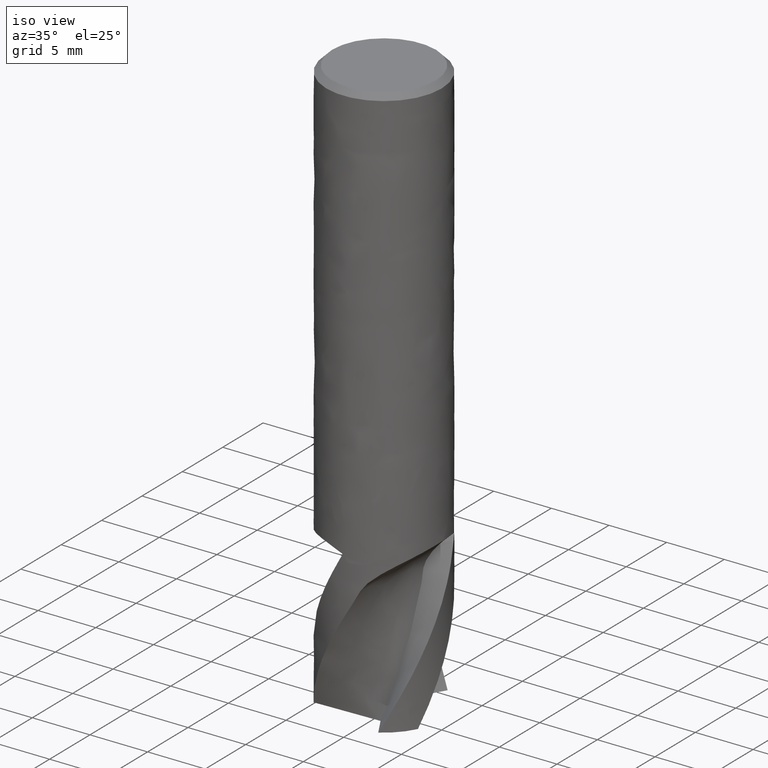
[diagram: clean part render]
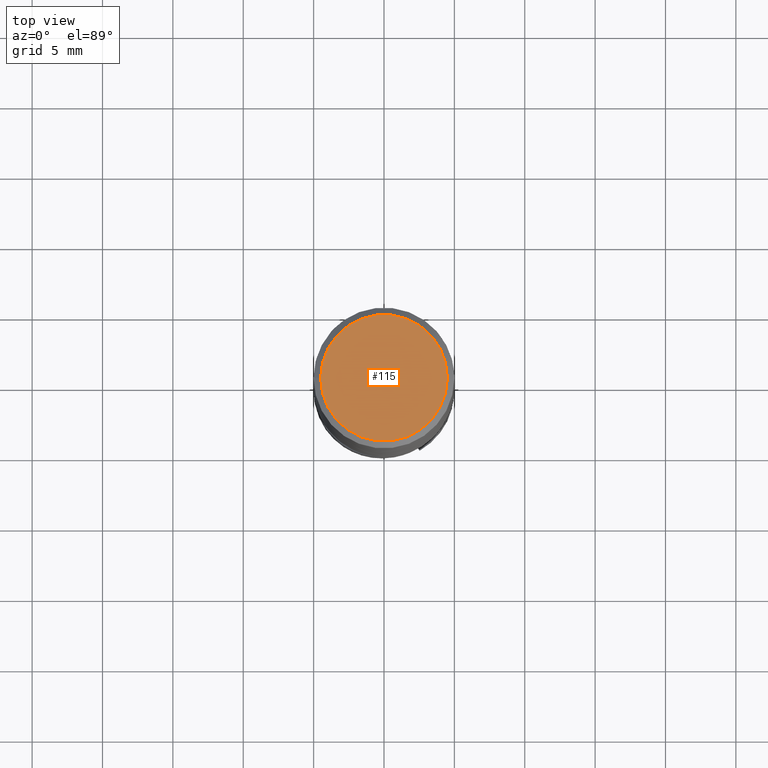
[diagram: tour spotlight — one face highlighted and labeled with its STEP entity id]
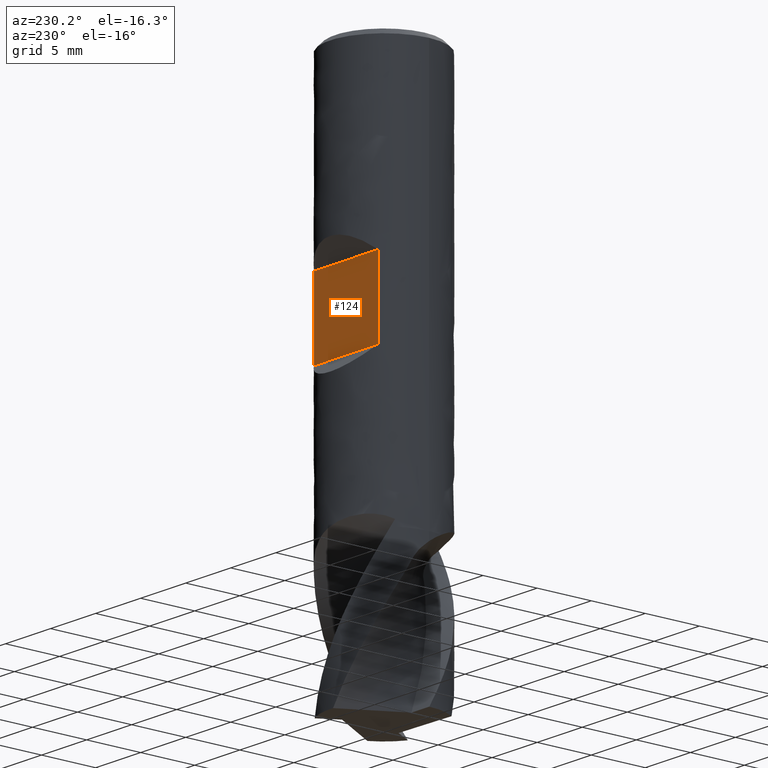
[diagram: tour spotlight — one face highlighted and labeled with its STEP entity id]
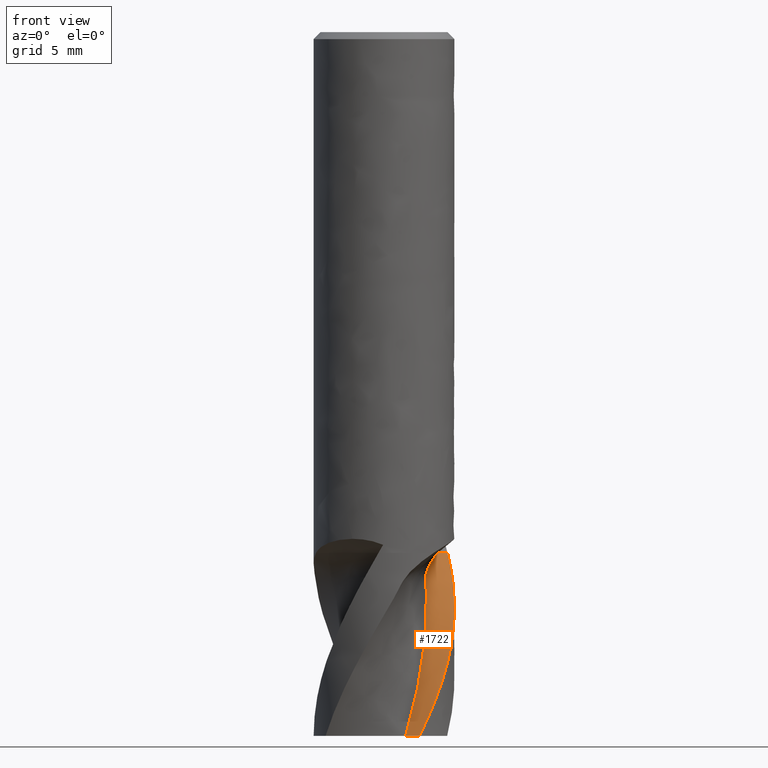
[diagram: tour spotlight — one face highlighted and labeled with its STEP entity id]
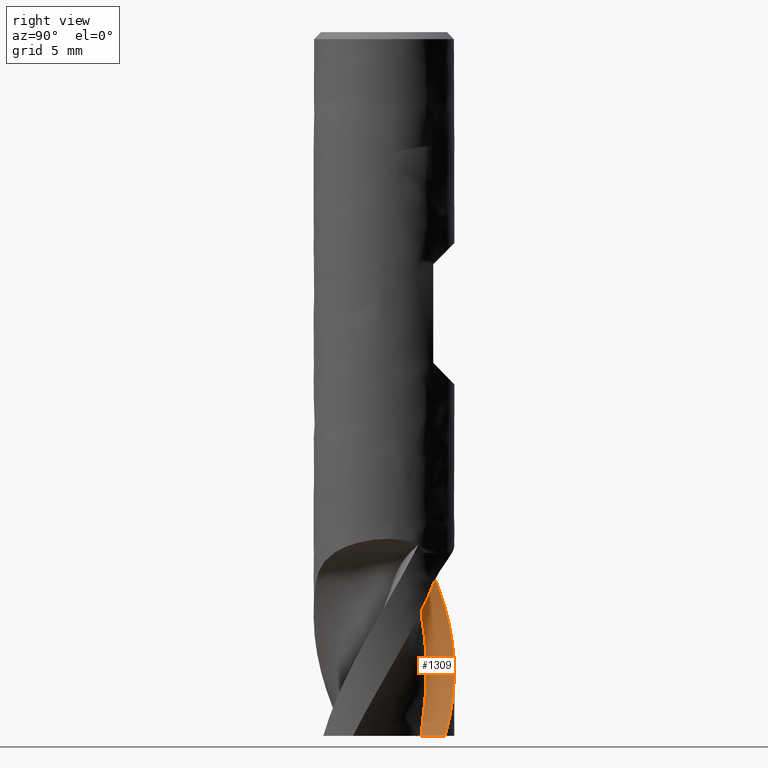
[diagram: tour spotlight — one face highlighted and labeled with its STEP entity id]
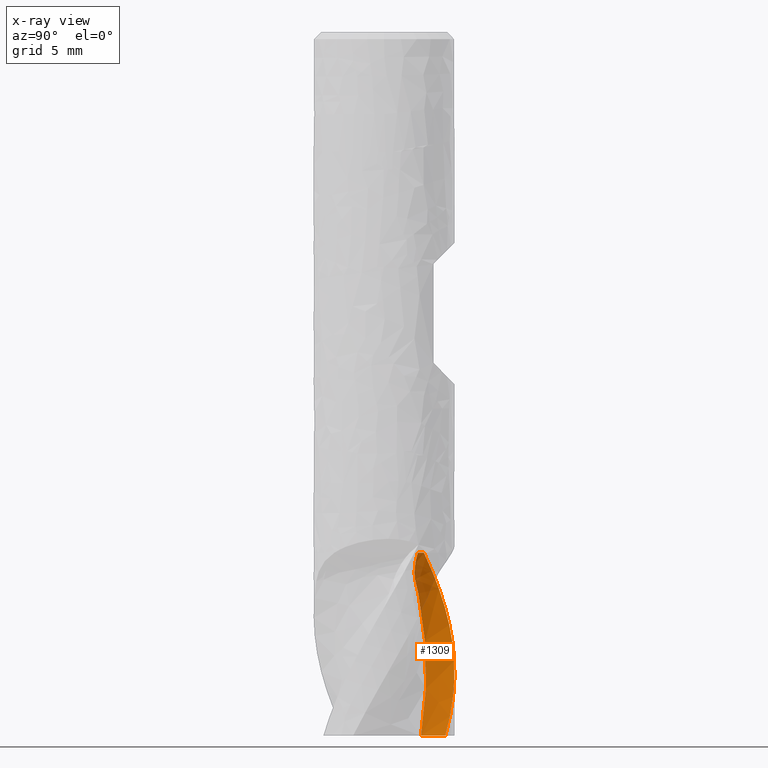
[diagram: x-ray of the same camera — body ghosted, this tour face saturated]
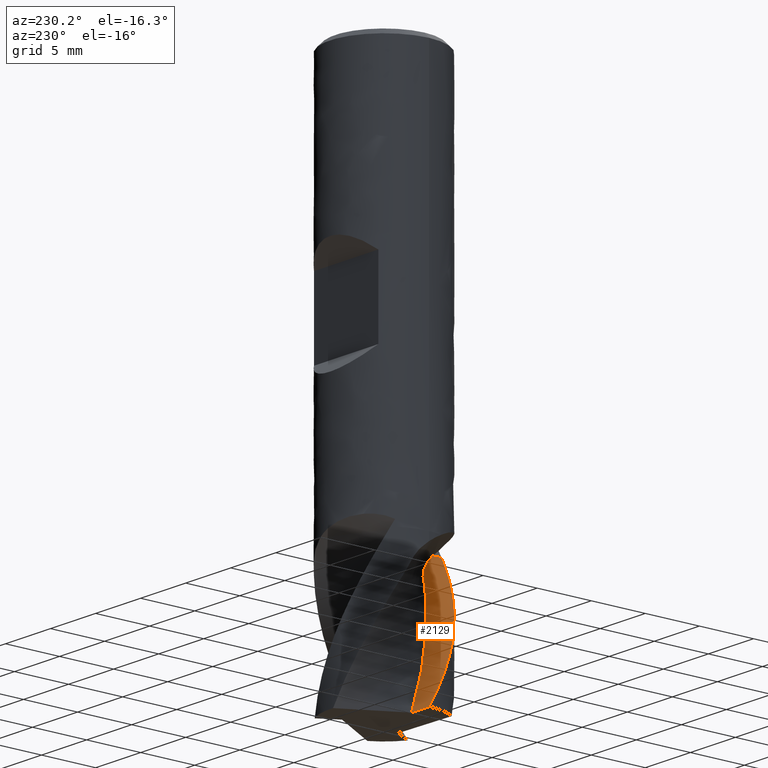
[diagram: tour spotlight — one face highlighted and labeled with its STEP entity id]
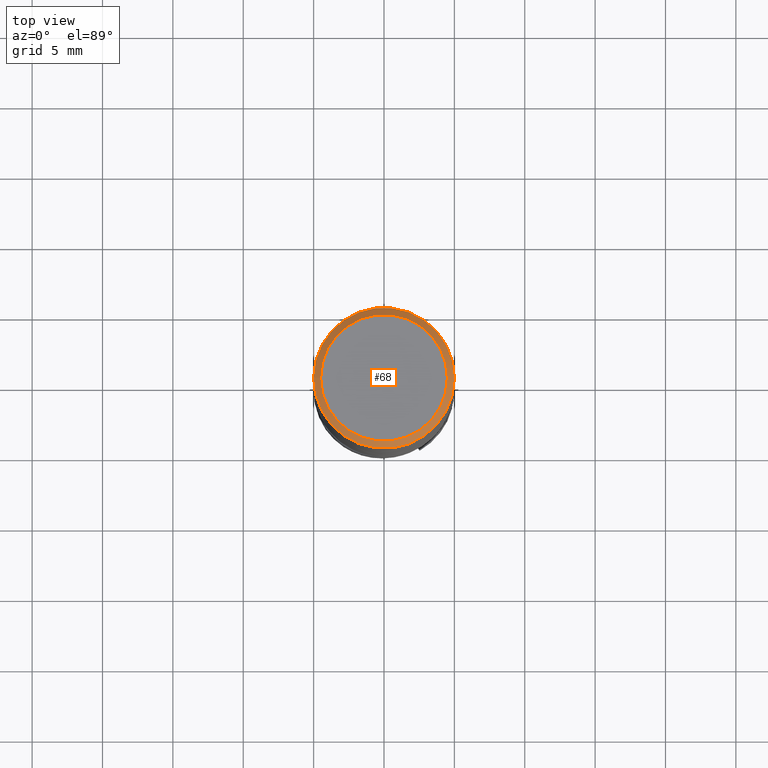
[diagram: tour spotlight — one face highlighted and labeled with its STEP entity id]
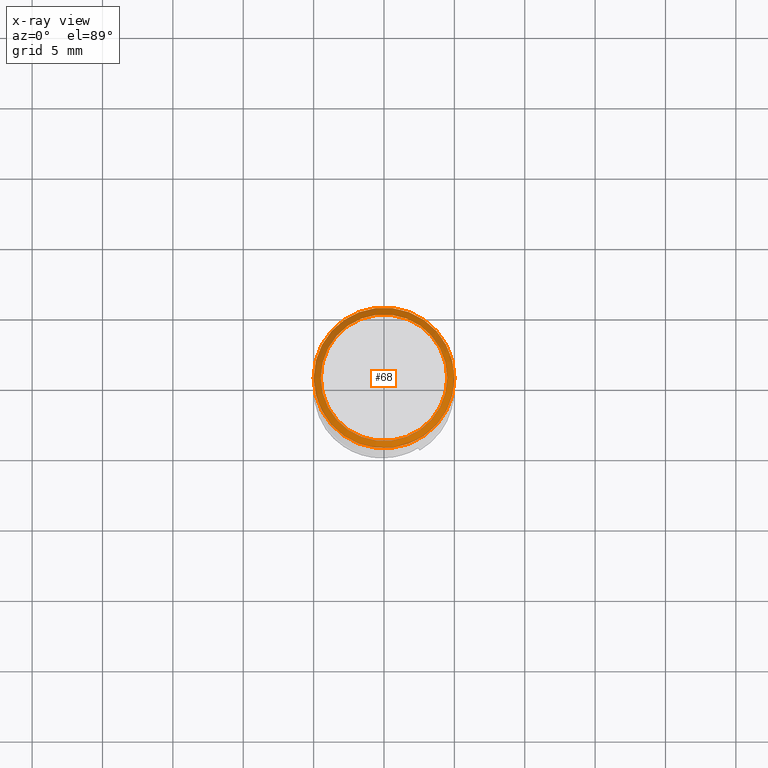
[diagram: x-ray of the same camera — body ghosted, this tour face saturated]
A machine part: a face-by-face anatomy tour. The part has 25 B-rep faces; the first image is the clean iso view, then the 6 largest visible faces are spotlighted one at a time (largest first), each with its STEP entity span.

Face 1 — top view, entity #115. In plain terms, the highlighted planar face has unit normal (0, -0, 1).
Definition (entity closure, byte-faithful):
#75 = VERTEX_POINT('', #76);
#76 = CARTESIAN_POINT('', (-4.5, 2.75545529808154E-16, 0.));
#82 = EDGE_CURVE('', #75, #75, #83, .T.);
#83 = CIRCLE('', #84, 4.5);
#84 = AXIS2_PLACEMENT_3D('', #85, #86, #87);
#85 = CARTESIAN_POINT('', (0., 0., 0.));
#86 = DIRECTION('', (3.74939945665464E-33, 6.12323399573677E-17, -1.));
#87 = DIRECTION('', (-1., 6.12323399573677E-17, 0.));
#115 = ADVANCED_FACE('', (#116), #119, .T.);
#116 = FACE_OUTER_BOUND('', #117, .T.);
#117 = EDGE_LOOP('', (#118));
#118 = ORIENTED_EDGE('', *, *, #82, .F.);
#119 = PLANE('', #120);
#120 = AXIS2_PLACEMENT_3D('', #121, #122, #123);
#121 = CARTESIAN_POINT('', (7.00035713374682, -7.00035713374682, -5.95537370240346E-15));
#122 = DIRECTION('', (0., -8.50724268579701E-16, 1.));
#123 = DIRECTION('', (0., 1., 8.50724268579701E-16));

Face 2 — auxiliary view, entity #124. In plain terms, the highlighted planar face has unit normal (0, 1, 0).
Definition (entity closure, byte-faithful):
#124 = ADVANCED_FACE('', (#125), #159, .T.);
#125 = FACE_OUTER_BOUND('', #126, .T.);
#126 = EDGE_LOOP('', (#127, #137, #145, #153));
#127 = ORIENTED_EDGE('', *, *, #128, .T.);
#128 = EDGE_CURVE('', #129, #131, #133, .T.);
#129 = VERTEX_POINT('', #130);
#130 = CARTESIAN_POINT('', (3.57071421427142, 3.5, -16.5));
#131 = VERTEX_POINT('', #132);
#132 = CARTESIAN_POINT('', (3.57071421427142, 3.5, -23.5));
#133 = LINE('', #134, #135);
#134 = CARTESIAN_POINT('', (3.57071421427142, 3.5, -16.5));
#135 = VECTOR('', #136, 7.);
#136 = DIRECTION('', (0., 4.44089209850063E-16, -7.));
#137 = ORIENTED_EDGE('', *, *, #138, .T.);
#138 = EDGE_CURVE('', #131, #139, #141, .T.);
#139 = VERTEX_POINT('', #140);
#140 = CARTESIAN_POINT('', (-3.57071421427142, 3.5, -23.5));
#141 = LINE('', #142, #143);
#142 = CARTESIAN_POINT('', (3.57071421427142, 3.5, -23.5));
#143 = VECTOR('', #144, 7.14142842854284);
#144 = DIRECTION('', (-7.14142842854284, 4.44089209850063E-16, 0.));
#145 = ORIENTED_EDGE('', *, *, #146, .F.);
#146 = EDGE_CURVE('', #147, #139, #149, .T.);
#147 = VERTEX_POINT('', #148);
#148 = CARTESIAN_POINT('', (-3.57071421427142, 3.5, -16.5));
#149 = LINE('', #150, #151);
#150 = CARTESIAN_POINT('', (-3.57071421427142, 3.5, -16.5));
#151 = VECTOR('', #152, 7.);
#152 = DIRECTION('', (-8.88178419700125E-16, 0., -7.));
#153 = ORIENTED_EDGE('', *, *, #154, .F.);
#154 = EDGE_CURVE('', #129, #147, #155, .T.);
#155 = LINE('', #156, #157);
#156 = CARTESIAN_POINT('', (3.57071421427142, 3.5, -16.5));
#157 = VECTOR('', #158, 7.14142842854284);
#158 = DIRECTION('', (-7.14142842854284, 4.44089209850063E-16, 0.));
#159 = PLANE('', #160);
#160 = AXIS2_PLACEMENT_3D('', #161, #162, #163);
#161 = CARTESIAN_POINT('', (5., 3.5, -23.5));
#162 = DIRECTION('', (0., 1., 6.34413156928661E-17));
#163 = DIRECTION('', (-1., 0., 0.));

Face 3 — front view, entity #1722. In plain terms, the highlighted face is a freeform B-spline surface patch.
Definition (entity closure, byte-faithful):
#988 = VERTEX_POINT('', #989);
#989 = CARTESIAN_POINT('', (3.82045431044937, 1.82084653301444, -37.));
#995 = EDGE_CURVE('', #988, #996, #998, .T.);
#996 = VERTEX_POINT('', #997);
#997 = CARTESIAN_POINT('', (4.51357657803262, 2.15119187294748, -37.));
#998 = LINE('', #999, #1000);
#999 = CARTESIAN_POINT('', (3.82045431044936, 1.82084653301443, -37.));
#1000 = VECTOR('', #1001, 0.767819328641348);
#1001 = DIRECTION('', (0.693122267583265, 0.330345339933052, 0.));
#1573 = EDGE_CURVE('', #996, #1574, #1576, .T.);
#1574 = VERTEX_POINT('', #1575);
#1575 = CARTESIAN_POINT('', (2.52471228494179, -4.31576503974255, -50.));
#1576 = B_SPLINE_CURVE_WITH_KNOTS('', 3, (#1577, #1578, #1579, #1580, #1581, #1582, #1583, #1584, #1585, #1586, #1587, #1588, #1589, #1590, #1591, #1592, #1593, #1594, #1595, #1596, #1597, #1598, #1599, #1600, #1601, #1602, #1603, #1604, #1605, #1606, #1607, #1608, #1609, #1610, #1611, #1612, #1613, #1614, #1615, #1616, #1617, #1618, #1619, #1620, #1621, #1622, #1623, #1624, #1625, #1626, #1627, #1628, #1629, #1630, #1631, #1632, #1633, #1634, #1635, #1636, #1637, #1638, #1639, #1640, #1641, #1642, #1643, #1644, #1645, #1646, #1647, #1648, #1649, #1650, #1651, #1652, #1653, #1654, #1655, #1656, #1657, #1658, #1659, #1660, #1661, #1662, #1663, #1664, #1665, #1666, #1667, #1668, #1669, #1670, #1671, #1672, #1673, #1674, #1675, #1676, #1677, #1678, #1679, #1680, #1681, #1682, #1683, #1684, #1685, #1686, #1687, #1688, #1689, #1690, #1691, #1692, #1693, #1694), .UNSPECIFIED., .F., .U., (4, 3, 3, 3, 3, 3, 3, 3, 3, 3, 3, 3, 3, 3, 3, 3, 3, 3, 3, 3, 3, 3, 3, 3, 3, 3, 3, 3, 3, 3, 3, 3, 3, 3, 3, 3, 3, 3, 3, 4), (0.660101457707535, 0.788015446717256, 0.985019040931394, 1.18202238377968, 1.37902460556503, 1.57602425974893, 1.77302135436621, 2.06858821376276, 2.26566389090764, 2.46277342951328, 2.65991293752496, 2.74750546111594, 2.94460382971803, 3.14154836010868, 3.33840799857541, 3.53525252840326, 3.73214857226571, 3.81971554835767, 4.11524449749473, 4.41080138553026, 4.70629177718464, 4.90324373998797, 5.10015229603674, 5.18771418202401, 5.63140652950315, 5.92717037484076, 6.12432575781879, 6.56818160772682, 7.01196124286788, 7.45565909294126, 8.12140928759308, 8.78710812321912, 9.45269334664795, 10.4511961006731, 11.4493962791665, 12.447287211838, 13.4448771830679, 14.4421672631738, 15.4391582437301, 15.6334436813352), .UNSPECIFIED.);
#1577 = CARTESIAN_POINT('', (4.51357657803262, 2.15119187294748, -37.));
#1578 = CARTESIAN_POINT('', (4.52269019052406, 2.13206992087992, -37.0370039423316));
#1579 = CARTESIAN_POINT('', (4.53168247840204, 2.1128896324546, -37.0740082613894));
#1580 = CARTESIAN_POINT('', (4.54055210160929, 2.09365389034852, -37.111012514407));
#1581 = CARTESIAN_POINT('', (4.55421243434287, 2.06402843373027, -37.16800370749));
#1582 = CARTESIAN_POINT('', (4.56758224969655, 2.03427042842638, -37.224996526924));
#1583 = CARTESIAN_POINT('', (4.58065716627806, 2.00439016287385, -37.2819920069742));
#1584 = CARTESIAN_POINT('', (4.59373206617668, 1.97450993544692, -37.3389874143012));
#1585 = CARTESIAN_POINT('', (4.60651238108974, 1.94450670986796, -37.3959868105145));
#1586 = CARTESIAN_POINT('', (4.61899364227849, 1.91439226194396, -37.4529920348381));
#1587 = CARTESIAN_POINT('', (4.63147483244164, 1.88427798538858, -37.5099969347691));
#1588 = CARTESIAN_POINT('', (4.64365726800277, 1.85405174191559, -37.5670089894672));
#1589 = CARTESIAN_POINT('', (4.65553635275436, 1.82372730093692, -37.624031125531));
#1590 = CARTESIAN_POINT('', (4.66741528268152, 1.79340325518769, -37.6810525184046));
#1591 = CARTESIAN_POINT('', (4.67899114680903, 1.76298026432403, -37.7380853198429));
#1592 = CARTESIAN_POINT('', (4.69025923584381, 1.7324746175866, -37.7951338225287));
#1593 = CARTESIAN_POINT('', (4.70152717847515, 1.70196936720132, -37.8521815839978));
#1594 = CARTESIAN_POINT('', (4.71248586953033, 1.6713858527071, -37.9092494601207));
#1595 = CARTESIAN_POINT('', (4.72313787907759, 1.64072196767838, -37.9663304969753));
#1596 = CARTESIAN_POINT('', (4.73911974426328, 1.59471505467065, -38.0519726879274));
#1597 = CARTESIAN_POINT('', (4.75441577387398, 1.54851657799328, -38.1376429117305));
#1598 = CARTESIAN_POINT('', (4.76904964221312, 1.50205376405337, -38.2232799232886));
#1599 = CARTESIAN_POINT('', (4.778807094446, 1.47107366520887, -38.2803802764065));
#1600 = CARTESIAN_POINT('', (4.78827034108927, 1.43997474325795, -38.3374673527001));
#1601 = CARTESIAN_POINT('', (4.79744387580808, 1.40873427532361, -38.394522625451));
#1602 = CARTESIAN_POINT('', (4.8066189867198, 1.37748843966509, -38.4515877014152));
#1603 = CARTESIAN_POINT('', (4.81550454614975, 1.3461000683908, -38.5086222650346));
#1604 = CARTESIAN_POINT('', (4.82410224789088, 1.31454840226372, -38.5656089274251));
#1605 = CARTESIAN_POINT('', (4.83270125686462, 1.28299193888178, -38.6226042543199));
#1606 = CARTESIAN_POINT('', (4.84101255765101, 1.25127113822319, -38.6795530512326));
#1607 = CARTESIAN_POINT('', (4.84903465735026, 1.21936987490099, -38.7364404482481));
#1608 = CARTESIAN_POINT('', (4.85259901623622, 1.20519558691421, -38.7617165114552));
#1609 = CARTESIAN_POINT('', (4.85610627380285, 1.1909856105809, -38.7869807087667));
#1610 = CARTESIAN_POINT('', (4.85955608305265, 1.17673900065646, -38.81223199363));
#1611 = CARTESIAN_POINT('', (4.86731875213956, 1.14468165764246, -38.8690517637158));
#1612 = CARTESIAN_POINT('', (4.87478778972705, 1.11244567888946, -38.9258117438629));
#1613 = CARTESIAN_POINT('', (4.88192483914902, 1.08018973560194, -38.9826011371794));
#1614 = CARTESIAN_POINT('', (4.88905631799764, 1.04795896855845, -39.0393462055287));
#1615 = CARTESIAN_POINT('', (4.89585689011766, 1.01570773139388, -39.0961223599831));
#1616 = CARTESIAN_POINT('', (4.90231199648596, 0.983532962899463, -39.1529800682631));
#1617 = CARTESIAN_POINT('', (4.90876432041396, 0.951372063173041, -39.2098132683213));
#1618 = CARTESIAN_POINT('', (4.91487207410147, 0.919286874262206, -39.2667296300289));
#1619 = CARTESIAN_POINT('', (4.92063852051666, 0.887308599308967, -39.3237393363156));
#1620 = CARTESIAN_POINT('', (4.926404524367, 0.855332778633362, -39.3807446672053));
#1621 = CARTESIAN_POINT('', (4.93182988379401, 0.823463001094806, -39.4378449401624));
#1622 = CARTESIAN_POINT('', (4.93692935846076, 0.791661865677616, -39.4950112834286));
#1623 = CARTESIAN_POINT('', (4.94203016765541, 0.759852407932186, -39.5521925870749));
#1624 = CARTESIAN_POINT('', (4.94680551263605, 0.728110696036531, -39.6094413942207));
#1625 = CARTESIAN_POINT('', (4.95127498931909, 0.696330367098295, -39.6666916851714));
#1626 = CARTESIAN_POINT('', (4.95326273142995, 0.682196475681596, -39.6921530137009));
#1627 = CARTESIAN_POINT('', (4.95519001294439, 0.668053940389463, -39.7176143412419));
#1628 = CARTESIAN_POINT('', (4.95705849668959, 0.653889180517228, -39.7430675454021));
#1629 = CARTESIAN_POINT('', (4.96336442459008, 0.606084668055544, -39.8289693204016));
#1630 = CARTESIAN_POINT('', (4.96900307088977, 0.558008114060345, -39.9147720077417));
#1631 = CARTESIAN_POINT('', (4.97395945829877, 0.50963448391976, -40.0004433402708));
#1632 = CARTESIAN_POINT('', (4.9789163142778, 0.461256280603028, -40.0861227720494));
#1633 = CARTESIAN_POINT('', (4.98319011756973, 0.412578383255385, -40.1716757797653));
#1634 = CARTESIAN_POINT('', (4.98675681460506, 0.363670829171006, -40.2571235172016));
#1635 = CARTESIAN_POINT('', (4.99032270918086, 0.314774278637853, -40.3425520300299));
#1636 = CARTESIAN_POINT('', (4.99318109981958, 0.265645357045767, -40.4278801306741));
#1637 = CARTESIAN_POINT('', (4.99531284128629, 0.216447725052183, -40.5131835171647));
#1638 = CARTESIAN_POINT('', (4.9967337019231, 0.183656235176107, -40.5700404231001));
#1639 = CARTESIAN_POINT('', (4.9978319113918, 0.150835115641241, -40.6268892306513));
#1640 = CARTESIAN_POINT('', (4.99860607545858, 0.118056352597274, -40.6837659549689));
#1641 = CARTESIAN_POINT('', (4.99938006890533, 0.085284813750021, -40.7406301440774));
#1642 = CARTESIAN_POINT('', (4.99983058480247, 0.0525565985958612, -40.797524633626));
#1643 = CARTESIAN_POINT('', (4.99996049639729, 0.0198754739954479, -40.8544459481318));
#1644 = CARTESIAN_POINT('', (5.00001826587406, 0.00534273370411942, -40.8797578886133));
#1645 = CARTESIAN_POINT('', (5.00001263846642, -0.00918086962307883, -40.9050753006882));
#1646 = CARTESIAN_POINT('', (4.99994385299803, -0.0236952920888031, -40.9303977219325));
#1647 = CARTESIAN_POINT('', (4.99959530424767, -0.0972425678642179, -41.0587111359146));
#1648 = CARTESIAN_POINT('', (4.99762678497782, -0.170550383505014, -41.1871674898222));
#1649 = CARTESIAN_POINT('', (4.99405839517969, -0.243681647924708, -41.3156693973044));
#1650 = CARTESIAN_POINT('', (4.9916797183908, -0.292430705919644, -41.4013283420802));
#1651 = CARTESIAN_POINT('', (4.9885897012823, -0.341106987982313, -41.4870119235857));
#1652 = CARTESIAN_POINT('', (4.98478588744022, -0.389755893318829, -41.5726763770572));
#1653 = CARTESIAN_POINT('', (4.98225027537461, -0.422185122632284, -41.6297800710956));
#1654 = CARTESIAN_POINT('', (4.97939679206752, -0.45460768552448, -41.6868743274313));
#1655 = CARTESIAN_POINT('', (4.97622471511513, -0.487019080403793, -41.7439563344478));
#1656 = CARTESIAN_POINT('', (4.96908341929855, -0.559986843208756, -41.8724650383749));
#1657 = CARTESIAN_POINT('', (4.96032620210445, -0.632898837231896, -42.000925815704));
#1658 = CARTESIAN_POINT('', (4.94995854631525, -0.705627656601241, -42.1293501515843));
#1659 = CARTESIAN_POINT('', (4.93959267076275, -0.778343987659299, -42.2577524356412));
#1660 = CARTESIAN_POINT('', (4.92761528693375, -0.850885687960377, -42.3861337246856));
#1661 = CARTESIAN_POINT('', (4.91404996817272, -0.923099621006164, -42.5145213904893));
#1662 = CARTESIAN_POINT('', (4.90048714939236, -0.99530024559673, -42.6428853954642));
#1663 = CARTESIAN_POINT('', (4.88533873631743, -1.06717069307242, -42.7712777583225));
#1664 = CARTESIAN_POINT('', (4.86862298142884, -1.13864404653209, -42.8996769066899));
#1665 = CARTESIAN_POINT('', (4.84354168552219, -1.24588684468927, -43.0923344956429));
#1666 = CARTESIAN_POINT('', (4.81492616030494, -1.35226052527659, -43.2850500656497));
#1667 = CARTESIAN_POINT('', (4.7828296480809, -1.45758037769393, -43.4777274600994));
#1668 = CARTESIAN_POINT('', (4.75073561192913, -1.56289210525444, -43.6703899905306));
#1669 = CARTESIAN_POINT('', (4.71514854386364, -1.66718417470491, -43.8630623381447));
#1670 = CARTESIAN_POINT('', (4.6761581132882, -1.77018227861679, -44.0557033894929));
#1671 = CARTESIAN_POINT('', (4.63717433705591, -1.87316280424812, -44.2483115635519));
#1672 = CARTESIAN_POINT('', (4.59477907079943, -1.97487440323048, -44.440942017146));
#1673 = CARTESIAN_POINT('', (4.54908339829272, -2.07505186329824, -44.6335530609402));
#1674 = CARTESIAN_POINT('', (4.48053131324202, -2.22533685498361, -44.9225057764069));
#1675 = CARTESIAN_POINT('', (4.40450918370869, -2.37225240731298, -45.2115544516683));
#1676 = CARTESIAN_POINT('', (4.32142604161837, -2.51501033135504, -45.5005112053353));
#1677 = CARTESIAN_POINT('', (4.23836807614955, -2.65772499557171, -45.7893803966566));
#1678 = CARTESIAN_POINT('', (4.1482040319977, -2.79636736126474, -46.0783339207562));
#1679 = CARTESIAN_POINT('', (4.05143373397082, -2.93016803259527, -46.3672013652289));
#1680 = CARTESIAN_POINT('', (3.95469341571253, -3.06392725202118, -46.6559793175815));
#1681 = CARTESIAN_POINT('', (3.85129281696635, -3.19292866500344, -46.9448453700987));
#1682 = CARTESIAN_POINT('', (3.74179961414991, -3.31646432930426, -47.2336240083423));
#1683 = CARTESIAN_POINT('', (3.63233943421311, -3.43996273555373, -47.5223155516617));
#1684 = CARTESIAN_POINT('', (3.51672442555959, -3.55807290936359, -47.8110938593589));
#1685 = CARTESIAN_POINT('', (3.39559070739284, -3.67014492191621, -48.0997851838693));
#1686 = CARTESIAN_POINT('', (3.27449340391344, -3.78218324387171, -48.3883897232592));
#1687 = CARTESIAN_POINT('', (3.14780746918393, -3.88825476787554, -48.6770809563075));
#1688 = CARTESIAN_POINT('', (3.01623019855476, -3.98777574461332, -48.965685737446));
#1689 = CARTESIAN_POINT('', (2.88469238956585, -4.08726687378727, -49.2542039624642));
#1690 = CARTESIAN_POINT('', (2.74818850664455, -4.18027044879199, -49.5428104559975));
#1691 = CARTESIAN_POINT('', (2.60746312931693, -4.26627894414474, -49.8313279650828));
#1692 = CARTESIAN_POINT('', (2.58003972022953, -4.28303957536734, -49.887551894489));
#1693 = CARTESIAN_POINT('', (2.55245422605593, -4.2995360701638, -49.9437763607327));
#1694 = CARTESIAN_POINT('', (2.52471228494178, -4.31576503974255, -50.));
#1722 = ADVANCED_FACE('', (#1723), #1754, .T.);
#1723 = FACE_OUTER_BOUND('', #1724, .T.);
#1724 = EDGE_LOOP('', (#1725, #1726, #1747, #1753));
#1725 = ORIENTED_EDGE('', *, *, #995, .F.);
#1726 = ORIENTED_EDGE('', *, *, #1727, .F.);
#1727 = EDGE_CURVE('', #1728, #988, #1730, .T.);
#1728 = VERTEX_POINT('', #1729);
#1729 = CARTESIAN_POINT('', (1.52973524202982, -2.6149426677213, -50.));
#1730 = B_SPLINE_CURVE_WITH_KNOTS('', 3, (#1731, #1732, #1733, #1734, #1735, #1736, #1737, #1738, #1739, #1740, #1741, #1742, #1743, #1744, #1745, #1746), .UNSPECIFIED., .F., .U., (4, 1, 1, 1, 1, 1, 1, 1, 1, 1, 1, 1, 1, 4), (0.0499999999999139, 1.87333333333333, 2.81, 3.74666666666667, 4.68333333333333, 5.62, 6.55666666666667, 7.49333333333333, 8.43, 9.36666666666667, 10.3033333333333, 11.24, 12.1766666666667, 13.05), .UNSPECIFIED.);
#1731 = CARTESIAN_POINT('', (1.5297352420298, -2.61494266772132, -50.0000000000001));
#1732 = CARTESIAN_POINT('', (1.70853202545369, -2.50367414278105, -49.3922222222223));
#1733 = CARTESIAN_POINT('', (1.9615705231082, -2.30883669785004, -48.4722222222223));
#1734 = CARTESIAN_POINT('', (2.25597846322701, -2.00229892265506, -47.24));
#1735 = CARTESIAN_POINT('', (2.45472630653001, -1.74812208492103, -46.3033333333333));
#1736 = CARTESIAN_POINT('', (2.62656965451419, -1.4752809407662, -45.3666666666667));
#1737 = CARTESIAN_POINT('', (2.76980779281399, -1.18645296262457, -44.43));
#1738 = CARTESIAN_POINT('', (2.88325106920112, -0.884362522824121, -43.4933333333333));
#1739 = CARTESIAN_POINT('', (2.96493973519287, -0.572168038188853, -42.5566666666667));
#1740 = CARTESIAN_POINT('', (3.01697392627312, -0.251934615331243, -41.62));
#1741 = CARTESIAN_POINT('', (3.02752671368613, 0.0697566565968309, -40.6833333333333));
#1742 = CARTESIAN_POINT('', (3.03800817788962, 0.40283498959021, -39.7466666666667));
#1743 = CARTESIAN_POINT('', (2.86114787654536, 0.691249828554066, -38.81));
#1744 = CARTESIAN_POINT('', (3.14595035866943, 1.09796002240504, -37.8944444444444));
#1745 = CARTESIAN_POINT('', (3.57161511705545, 1.54599300256216, -37.2911111111111));
#1746 = CARTESIAN_POINT('', (3.82045431044937, 1.82084653301444, -37.));
#1747 = ORIENTED_EDGE('', *, *, #1748, .T.);
#1748 = EDGE_CURVE('', #1728, #1574, #1749, .T.);
#1749 = LINE('', #1750, #1751);
#1750 = CARTESIAN_POINT('', (1.52973524202982, -2.6149426677213, -50.));
#1751 = VECTOR('', #1752, 1.97047609909124);
#1752 = DIRECTION('', (0.994977042911964, -1.70082237202125, 0.));
#1753 = ORIENTED_EDGE('', *, *, #1573, .F.);
#1754 = B_SPLINE_SURFACE_WITH_KNOTS('', 3, 1, ((#1755, #1756), (#1757, #1758), (#1759, #1760), (#1761, #1762), (#1763, #1764), (#1765, #1766), (#1767, #1768), (#1769, #1770), (#1771, #1772), (#1773, #1774), (#1775, #1776), (#1777, #1778), (#1779, #1780), (#1781, #1782), (#1783, #1784), (#1785, #1786)), .UNSPECIFIED., .F., .F., .U., (4, 1, 1, 1, 1, 1, 1, 1, 1, 1, 1, 1, 1, 4), (2, 2), (0.0499999999999109, 1.87333333333333, 2.81, 3.74666666666667, 4.68333333333333, 5.62, 6.55666666666667, 7.49333333333333, 8.43, 9.36666666666667, 10.3033333333333, 11.24, 12.1766666666667, 13.05), (0.201679908487413, 1.), .UNSPECIFIED.);
#1755 = CARTESIAN_POINT('', (2.54741722403584, -4.35457705921753, -50.0000000000001));
#1756 = CARTESIAN_POINT('', (1.5297352420298, -2.61494266772132, -50.0000000000001));
#1757 = CARTESIAN_POINT('', (2.845161561214, -4.16928528509994, -49.3922222222223));
#1758 = CARTESIAN_POINT('', (1.70853202545369, -2.50367414278105, -49.3922222222223));
#1759 = CARTESIAN_POINT('', (3.2665381560383, -3.84482896777943, -48.4722222222223));
#1760 = CARTESIAN_POINT('', (1.9615705231082, -2.30883669785004, -48.4722222222223));
#1761 = CARTESIAN_POINT('', (3.75680590757185, -3.33436180529635, -47.24));
#1762 = CARTESIAN_POINT('', (2.25597846322701, -2.00229892265506, -47.24));
#1763 = CARTESIAN_POINT('', (4.08777408125285, -2.91108957059548, -46.3033333333333));
#1764 = CARTESIAN_POINT('', (2.45472630653001, -1.74812208492103, -46.3033333333333));
#1765 = CARTESIAN_POINT('', (4.37393909364414, -2.45673628713225, -45.3666666666667));
#1766 = CARTESIAN_POINT('', (2.62656965451419, -1.4752809407662, -45.3666666666667));
#1767 = CARTESIAN_POINT('', (4.6124688016736, -1.97576066070609, -44.43));
#1768 = CARTESIAN_POINT('', (2.76980779281399, -1.18645296262457, -44.43));
#1769 = CARTESIAN_POINT('', (4.80138211704979, -1.47269949795017, -43.4933333333333));
#1770 = CARTESIAN_POINT('', (2.88325106920112, -0.884362522824121, -43.4933333333333));
#1771 = CARTESIAN_POINT('', (4.93741553579993, -0.952812405361773, -42.5566666666667));
#1772 = CARTESIAN_POINT('', (2.96493973519287, -0.572168038188853, -42.5566666666667));
#1773 = CARTESIAN_POINT('', (5.024066343701, -0.419538336303268, -41.62));
#1774 = CARTESIAN_POINT('', (3.01697392627312, -0.251934615331243, -41.62));
#1775 = CARTESIAN_POINT('', (5.04163954962506, 0.116163440328492, -40.6833333333333));
#1776 = CARTESIAN_POINT('', (3.02752671368613, 0.0697566565968309, -40.6833333333333));
#1777 = CARTESIAN_POINT('', (5.05909398338031, 0.670827711051982, -39.7466666666667));
#1778 = CARTESIAN_POINT('', (3.03800817788962, 0.40283498959021, -39.7466666666667));
#1779 = CARTESIAN_POINT('', (4.76457440540764, 1.15111535054518, -38.81));
#1780 = CARTESIAN_POINT('', (2.86114787654536, 0.691249828554066, -38.81));
#1781 = CARTESIAN_POINT('', (5.23884650719195, 1.82839631037466, -37.8944444444444));
#1782 = CARTESIAN_POINT('', (3.14595035866943, 1.09796002240503, -37.8944444444444));
#1783 = CARTESIAN_POINT('', (5.94769187296831, 2.57449073196485, -37.2911111111111));
#1784 = CARTESIAN_POINT('', (3.57161511705544, 1.54599300256216, -37.2911111111111));
#1785 = CARTESIAN_POINT('', (6.36207550606401, 3.03219517540315, -37.));
#1786 = CARTESIAN_POINT('', (3.82045431044936, 1.82084653301443, -37.));

Face 4 — right view, entity #1309. An x-ray twin of the same camera follows (body ghosted, this face saturated) — the face is partly hidden behind the body. In plain terms, the highlighted face is a freeform B-spline surface patch.
Definition (entity closure, byte-faithful):
#934 = EDGE_CURVE('', #935, #937, #939, .T.);
#935 = VERTEX_POINT('', #936);
#936 = CARTESIAN_POINT('', (-3.48712650920801, 2.39818722033969, -37.));
#937 = VERTEX_POINT('', #938);
#938 = CARTESIAN_POINT('', (-4.11977509940346, 2.83327604202895, -37.));
#939 = LINE('', #940, #941);
#940 = CARTESIAN_POINT('', (-3.487126509208, 2.39818722033969, -37.));
#941 = VECTOR('', #942, 0.76781932864135);
#942 = DIRECTION('', (-0.632648590195463, 0.435088821689259, 0.));
#1027 = EDGE_CURVE('', #937, #1028, #1030, .T.);
#1028 = VERTEX_POINT('', #1029);
#1029 = CARTESIAN_POINT('', (2.47520601871092, 4.34434749587752, -50.));
#1030 = B_SPLINE_CURVE_WITH_KNOTS('', 3, (#1031, #1032, #1033, #1034, #1035, #1036, #1037, #1038, #1039, #1040, #1041, #1042, #1043, #1044, #1045, #1046, #1047, #1048, #1049, #1050, #1051, #1052, #1053, #1054, #1055, #1056, #1057, #1058, #1059, #1060, #1061, #1062, #1063, #1064, #1065, #1066, #1067, #1068, #1069, #1070, #1071, #1072, #1073, #1074, #1075, #1076, #1077, #1078, #1079, #1080, #1081, #1082, #1083, #1084, #1085, #1086, #1087, #1088, #1089, #1090, #1091, #1092, #1093, #1094, #1095, #1096, #1097, #1098, #1099, #1100, #1101, #1102, #1103, #1104, #1105, #1106, #1107, #1108, #1109, #1110, #1111, #1112, #1113, #1114, #1115, #1116, #1117, #1118, #1119, #1120, #1121, #1122, #1123, #1124, #1125, #1126, #1127, #1128, #1129, #1130, #1131, #1132, #1133, #1134, #1135, #1136, #1137, #1138, #1139, #1140, #1141, #1142, #1143, #1144, #1145, #1146, #1147, #1148), .UNSPECIFIED., .F., .U., (4, 3, 3, 3, 3, 3, 3, 3, 3, 3, 3, 3, 3, 3, 3, 3, 3, 3, 3, 3, 3, 3, 3, 3, 3, 3, 3, 3, 3, 3, 3, 3, 3, 3, 3, 3, 3, 3, 3, 4), (0.660101456409151, 0.788265827595169, 0.985332160293623, 1.18239824852784, 1.37946317754999, 1.57652543589356, 1.77358497032777, 2.06929182688829, 2.26643002534465, 2.46360267564884, 2.66080622865024, 2.74841166920582, 2.9455750320919, 3.14258531193882, 3.33951005661611, 3.53641843979827, 3.73337728074347, 3.82095667219347, 4.11662541561918, 4.41232603225314, 4.70796418779889, 4.90498307883417, 5.34798882984541, 5.79105180055709, 5.98806935790369, 6.43129592009977, 6.87445397460691, 7.16990289814317, 7.8342218761622, 8.27725360562173, 9.27293405553249, 10.2682569768705, 10.3995821895431, 10.4579682493899, 11.457918085304, 12.4575073548687, 13.4567545617442, 14.4556703680851, 15.4542643718844, 15.6333940139658), .UNSPECIFIED.);
#1031 = CARTESIAN_POINT('', (-4.11977509940346, 2.83327604202895, -37.));
#1032 = CARTESIAN_POINT('', (-4.10774831383597, 2.85076380212426, -37.0370763748129));
#1033 = CARTESIAN_POINT('', (-4.09560990960113, 2.8681753625771, -37.0741531273479));
#1034 = CARTESIAN_POINT('', (-4.08336172311507, 2.88550810745677, -37.1112298151212));
#1035 = CARTESIAN_POINT('', (-4.06452883554515, 2.9121590435744, -37.1682391603899));
#1036 = CARTESIAN_POINT('', (-4.04543574027514, 2.93862453053256, -37.2252501358325));
#1037 = CARTESIAN_POINT('', (-4.02608916459611, 2.96489562020685, -37.2822637776645));
#1038 = CARTESIAN_POINT('', (-4.00674261291685, 2.9911666772914, -37.3392773487702));
#1039 = CARTESIAN_POINT('', (-3.98714209815772, 3.01724397838618, -37.3962949157899));
#1040 = CARTESIAN_POINT('', (-3.96729559424404, 3.04311775452279, -37.4533183213641));
#1041 = CARTESIAN_POINT('', (-3.94744920707449, 3.06899137846074, -37.5103413915065));
#1042 = CARTESIAN_POINT('', (-3.92735633506684, 3.09466210944263, -37.5673716281117));
#1043 = CARTESIAN_POINT('', (-3.90702661789136, 3.12011906937674, -37.624411963124));
#1044 = CARTESIAN_POINT('', (-3.88669717622986, 3.14557568431107, -37.6814515251098));
#1045 = CARTESIAN_POINT('', (-3.86613038417279, 3.17081914961556, -37.7385025139515));
#1046 = CARTESIAN_POINT('', (-3.84533801083173, 3.19583722715233, -37.7955692300032));
#1047 = CARTESIAN_POINT('', (-3.82454592489497, 3.22085495887465, -37.8526351572456));
#1048 = CARTESIAN_POINT('', (-3.80353134199983, 3.24564380829522, -37.9097212424422));
#1049 = CARTESIAN_POINT('', (-3.78229361954424, 3.27020717624357, -37.9668204358699));
#1050 = CARTESIAN_POINT('', (-3.75042436660056, 3.30706688132409, -38.0525032882582));
#1051 = CARTESIAN_POINT('', (-3.71804572784866, 3.34342805857673, -38.1382140979324));
#1052 = CARTESIAN_POINT('', (-3.68510641458521, 3.37934767568876, -38.2238915225172));
#1053 = CARTESIAN_POINT('', (-3.66314683965118, 3.40329412281911, -38.2810098907805));
#1054 = CARTESIAN_POINT('', (-3.64093703655351, 3.42704512908472, -38.3381149118622));
#1055 = CARTESIAN_POINT('', (-3.61845955440574, 3.45061595271479, -38.3951880432307));
#1056 = CARTESIAN_POINT('', (-3.5959781440959, 3.47419089557916, -38.4522711486928));
#1057 = CARTESIAN_POINT('', (-3.57322827528448, 3.49758628927213, -38.5093236568652));
#1058 = CARTESIAN_POINT('', (-3.55019280590076, 3.5208139742012, -38.5663281696066));
#1059 = CARTESIAN_POINT('', (-3.52715372618805, 3.54404529958504, -38.6233416166154));
#1060 = CARTESIAN_POINT('', (-3.50382821409718, 3.56710956605469, -38.6803084406687));
#1061 = CARTESIAN_POINT('', (-3.48020155919761, 3.59001352467627, -38.737213771444));
#1062 = CARTESIAN_POINT('', (-3.46970568587368, 3.60018834837986, -38.7624933188795));
#1063 = CARTESIAN_POINT('', (-3.45915031651531, 3.61033156805068, -38.7877609795588));
#1064 = CARTESIAN_POINT('', (-3.44853448740316, 3.6204433277143, -38.8130157296376));
#1065 = CARTESIAN_POINT('', (-3.42464267709662, 3.64320068761492, -38.8698536545745));
#1066 = CARTESIAN_POINT('', (-3.40044977888377, 3.66579232554835, -38.9266322521354));
#1067 = CARTESIAN_POINT('', (-3.37607396320832, 3.68810582751456, -38.9834406404304));
#1068 = CARTESIAN_POINT('', (-3.35171707358431, 3.71040200466623, -39.0402049211355));
#1069 = CARTESIAN_POINT('', (-3.32717736721595, 3.73242123501405, -39.0970006661774));
#1070 = CARTESIAN_POINT('', (-3.30253136465288, 3.7541026338506, -39.153878189452));
#1071 = CARTESIAN_POINT('', (-3.27789606254672, 3.77577461936045, -39.2107310184386));
#1072 = CARTESIAN_POINT('', (-3.25315425530379, 3.79710993198387, -39.2676672344444));
#1073 = CARTESIAN_POINT('', (-3.22833434769917, 3.81809603591447, -39.3246968132425));
#1074 = CARTESIAN_POINT('', (-3.20351650225692, 3.83908039621433, -39.3817216537373));
#1075 = CARTESIAN_POINT('', (-3.17862013386895, 3.85971656321066, -39.4388414538457));
#1076 = CARTESIAN_POINT('', (-3.1536198853464, 3.88003629090602, -39.4960270945542));
#1077 = CARTESIAN_POINT('', (-3.12861323051146, 3.90036122553055, -39.5532273890802));
#1078 = CARTESIAN_POINT('', (-3.10350212965039, 3.92037053803877, -39.6104949565557));
#1079 = CARTESIAN_POINT('', (-3.07820383522951, 3.94013466124932, -39.6677634922494));
#1080 = CARTESIAN_POINT('', (-3.06695473760348, 3.94892294348645, -39.6932284243195));
#1081 = CARTESIAN_POINT('', (-3.05566777471098, 3.95766328179133, -39.7186932529682));
#1082 = CARTESIAN_POINT('', (-3.04433198026185, 3.96636392606061, -39.7441498320966));
#1083 = CARTESIAN_POINT('', (-3.00606224528179, 3.99573737243311, -39.8300914519026));
#1084 = CARTESIAN_POINT('', (-2.96722236253284, 4.02466873943095, -39.9159336058992));
#1085 = CARTESIAN_POINT('', (-2.92778357359833, 4.05315720718649, -40.001644300182));
#1086 = CARTESIAN_POINT('', (-2.88834053314668, 4.08164874601019, -40.0873642341116));
#1087 = CARTESIAN_POINT('', (-2.84829586193201, 4.10969802608629, -40.1729576148559));
#1088 = CARTESIAN_POINT('', (-2.80769865356731, 4.13724887706266, -40.2584458923038));
#1089 = CARTESIAN_POINT('', (-2.76711002058485, 4.16479390844978, -40.3439161119913));
#1090 = CARTESIAN_POINT('', (-2.72596628021562, 4.19184151060501, -40.4292860896289));
#1091 = CARTESIAN_POINT('', (-2.68440026621479, 4.21829292614275, -40.5146319356384));
#1092 = CARTESIAN_POINT('', (-2.6566998837385, 4.23592065266519, -40.5715080310268));
#1093 = CARTESIAN_POINT('', (-2.62881283368079, 4.25328329691028, -40.62837629971));
#1094 = CARTESIAN_POINT('', (-2.60080096424348, 4.27034358622233, -40.6852728712897));
#1095 = CARTESIAN_POINT('', (-2.53781502826499, 4.30870440654488, -40.813207346457));
#1096 = CARTESIAN_POINT('', (-2.47420536755386, 4.34553544488719, -40.9413037777583));
#1097 = CARTESIAN_POINT('', (-2.40999625133479, 4.38085814293869, -41.0695048190956));
#1098 = CARTESIAN_POINT('', (-2.34577884171007, 4.4161854033558, -41.1977224191912));
#1099 = CARTESIAN_POINT('', (-2.28095443410383, 4.4500098514252, -41.3260600218975));
#1100 = CARTESIAN_POINT('', (-2.21543905880505, 4.48239107806548, -41.454398775836));
#1101 = CARTESIAN_POINT('', (-2.18630622653682, 4.49679009264868, -41.5114673856846));
#1102 = CARTESIAN_POINT('', (-2.15703417582176, 4.51090466259885, -41.568537579161));
#1103 = CARTESIAN_POINT('', (-2.12760859500425, 4.52474106070878, -41.6255951732907));
#1104 = CARTESIAN_POINT('', (-2.06141043884997, 4.55586853609744, -41.7539565317093));
#1105 = CARTESIAN_POINT('', (-1.99442889665477, 4.58558937467385, -41.8822651439331));
#1106 = CARTESIAN_POINT('', (-1.92676697201784, 4.61384536320207, -42.0105274416049));
#1107 = CARTESIAN_POINT('', (-1.85911550560358, 4.64209698431949, -42.1387699143062));
#1108 = CARTESIAN_POINT('', (-1.79077578450125, 4.66888713528541, -42.2669814376594));
#1109 = CARTESIAN_POINT('', (-1.7218819627161, 4.69415833845354, -42.395184457977));
#1110 = CARTESIAN_POINT('', (-1.67595115929799, 4.71100639006076, -42.4806560949284));
#1111 = CARTESIAN_POINT('', (-1.62977423324525, 4.7271796363622, -42.5661314995319));
#1112 = CARTESIAN_POINT('', (-1.58338945188753, 4.74266568963608, -42.6516155944335));
#1113 = CARTESIAN_POINT('', (-1.47909294547831, 4.77748618910286, -42.8438271817434));
#1114 = CARTESIAN_POINT('', (-1.37370804369346, 4.80884556402229, -43.0361092740804));
#1115 = CARTESIAN_POINT('', (-1.26743519980458, 4.83669391364559, -43.2283749101247));
#1116 = CARTESIAN_POINT('', (-1.19656225566099, 4.85526586914353, -43.3565961111904));
#1117 = CARTESIAN_POINT('', (-1.12528098429668, 4.87227997801536, -43.4848273726164));
#1118 = CARTESIAN_POINT('', (-1.05364974256664, 4.88772157758492, -43.6130423887271));
#1119 = CARTESIAN_POINT('', (-0.892663920895484, 4.92242540980372, -43.9011959823358));
#1120 = CARTESIAN_POINT('', (-0.729856974593014, 4.94918596244371, -44.1894035718009));
#1121 = CARTESIAN_POINT('', (-0.566195842547037, 4.96783879246138, -44.4775361628925));
#1122 = CARTESIAN_POINT('', (-0.402593477880664, 4.98648492462765, -44.7655652914383));
#1123 = CARTESIAN_POINT('', (-0.238038992905355, 4.99704371791818, -45.0536917783299));
#1124 = CARTESIAN_POINT('', (-0.0734102063650995, 4.99946106511544, -45.3417294667231));
#1125 = CARTESIAN_POINT('', (-0.0516887027797406, 4.99978001550629, -45.3797338267906));
#1126 = CARTESIAN_POINT('', (-0.0299649098280988, 4.99995740362156, -45.4177383301324));
#1127 = CARTESIAN_POINT('', (-0.00824090078152437, 4.99999320875082, -45.4557425796374));
#1128 = CARTESIAN_POINT('', (0.00141740676273144, 5.00000912740328, -45.4726389420409));
#1129 = CARTESIAN_POINT('', (0.0110757888366623, 4.99999706107415, -45.4895353113829));
#1130 = CARTESIAN_POINT('', (0.0207340621915582, 4.99995700968171, -45.5064316533592));
#1131 = CARTESIAN_POINT('', (0.186146643238722, 4.9992710688354, -45.7958071383827));
#1132 = CARTESIAN_POINT('', (0.351580104284103, 4.99036613931115, -46.0852674401536));
#1133 = CARTESIAN_POINT('', (0.516113462066782, 4.97329135425193, -46.3746412290634));
#1134 = CARTESIAN_POINT('', (0.680587491681146, 4.95622272609448, -46.6639106742882));
#1135 = CARTESIAN_POINT('', (0.844261719212056, 4.93098010641616, -46.9532686663982));
#1136 = CARTESIAN_POINT('', (1.00623478308939, 4.89770268200331, -47.2425387755144));
#1137 = CARTESIAN_POINT('', (1.16815241925906, 4.86443664523301, -47.5317098954612));
#1138 = CARTESIAN_POINT('', (1.3284676831865, 4.82312115624207, -47.8209682281399));
#1139 = CARTESIAN_POINT('', (1.48629555325358, 4.7739842404829, -48.1101391354875));
#1140 = CARTESIAN_POINT('', (1.64407107967621, 4.7248636209916, -48.3992141392463));
#1141 = CARTESIAN_POINT('', (1.79945655685539, 4.66789694627997, -48.6883762616759));
#1142 = CARTESIAN_POINT('', (1.95159398185258, 4.60339884541812, -48.9774515264353));
#1143 = CARTESIAN_POINT('', (2.10368239550195, 4.53892152273664, -49.2664336650731));
#1144 = CARTESIAN_POINT('', (2.25261522559819, 4.46687959671397, -49.5555045151983));
#1145 = CARTESIAN_POINT('', (2.3975774930841, 4.38766705262108, -49.8444858312412));
#1146 = CARTESIAN_POINT('', (2.42358109313704, 4.37345775973756, -49.8963238349885));
#1147 = CARTESIAN_POINT('', (2.44945877063443, 4.35901707363681, -49.9481622477598));
#1148 = CARTESIAN_POINT('', (2.47520601871092, 4.34434749587752, -50.));
#1309 = ADVANCED_FACE('', (#1310), #1341, .T.);
#1310 = FACE_OUTER_BOUND('', #1311, .T.);
#1311 = EDGE_LOOP('', (#1312, #1313, #1334, #1340));
#1312 = ORIENTED_EDGE('', *, *, #934, .F.);
#1313 = ORIENTED_EDGE('', *, *, #1314, .F.);
#1314 = EDGE_CURVE('', #1315, #935, #1317, .T.);
#1315 = VERTEX_POINT('', #1316);
#1316 = CARTESIAN_POINT('', (1.49973915867159, 2.63226091452282, -50.));
#1317 = B_SPLINE_CURVE_WITH_KNOTS('', 3, (#1318, #1319, #1320, #1321, #1322, #1323, #1324, #1325, #1326, #1327, #1328, #1329, #1330, #1331, #1332, #1333), .UNSPECIFIED., .F., .U., (4, 1, 1, 1, 1, 1, 1, 1, 1, 1, 1, 1, 1, 4), (0.0499999999999133, 1.87333333333333, 2.81, 3.74666666666667, 4.68333333333333, 5.62, 6.55666666666667, 7.49333333333333, 8.43, 9.36666666666667, 10.3033333333333, 11.24, 12.1766666666667, 13.05), .UNSPECIFIED.);
#1318 = CARTESIAN_POINT('', (1.49973915867162, 2.63226091452281, -50.0000000000001));
#1319 = CARTESIAN_POINT('', (1.31397939771978, 2.73146920861271, -49.3922222222223));
#1320 = CARTESIAN_POINT('', (1.01872597197382, 2.85318825325145, -48.4722222222223));
#1321 = CARTESIAN_POINT('', (0.606052501375996, 2.95488412087271, -47.24));
#1322 = CARTESIAN_POINT('', (0.286554981193226, 2.99991638325346, -46.3033333333333));
#1323 = CARTESIAN_POINT('', (-0.0356540548345528, 3.01231651600171, -45.3666666666667));
#1324 = CARTESIAN_POINT('', (-0.357405490378807, 2.9919503934893, -44.43));
#1325 = CARTESIAN_POINT('', (-0.675745123679971, 2.93914993282888, -43.4933333333333));
#1326 = CARTESIAN_POINT('', (-0.986957811291379, 2.85379715046136, -42.5566666666667));
#1327 = CARTESIAN_POINT('', (-1.29030518616704, 2.73874337037343, -41.62));
#1328 = CARTESIAN_POINT('', (-1.57417439353898, 2.58703671638979, -40.6833333333333));
#1329 = CARTESIAN_POINT('', (-1.86786942346317, 2.42957476416218, -39.7466666666667));
#1330 = CARTESIAN_POINT('', (-2.02921385016214, 2.13220183079515, -38.81));
#1331 = CARTESIAN_POINT('', (-2.5238364510772, 2.17549291844998, -37.8944444444444));
#1332 = CARTESIAN_POINT('', (-3.12467677281954, 2.32011292262947, -37.2911111111111));
#1333 = CARTESIAN_POINT('', (-3.48712650920801, 2.3981872203397, -37.));
#1334 = ORIENTED_EDGE('', *, *, #1335, .T.);
#1335 = EDGE_CURVE('', #1315, #1028, #1336, .T.);
#1336 = LINE('', #1337, #1338);
#1337 = CARTESIAN_POINT('', (1.49973915867159, 2.63226091452282, -50.));
#1338 = VECTOR('', #1339, 1.97047609909123);
#1339 = DIRECTION('', (0.975466860039327, 1.7120865813547, 0.));
#1340 = ORIENTED_EDGE('', *, *, #1027, .F.);
#1341 = B_SPLINE_SURFACE_WITH_KNOTS('', 3, 1, ((#1342, #1343), (#1344, #1345), (#1346, #1347), (#1348, #1349), (#1350, #1351), (#1352, #1353), (#1354, #1355), (#1356, #1357), (#1358, #1359), (#1360, #1361), (#1362, #1363), (#1364, #1365), (#1366, #1367), (#1368, #1369), (#1370, #1371), (#1372, #1373)), .UNSPECIFIED., .F., .F., .U., (4, 1, 1, 1, 1, 1, 1, 1, 1, 1, 1, 1, 1, 4), (2, 2), (0.0499999999999077, 1.87333333333333, 2.81, 3.74666666666667, 4.68333333333333, 5.62, 6.55666666666667, 7.49333333333333, 8.43, 9.36666666666667, 10.3033333333333, 11.24, 12.1766666666667, 13.05), (0.201673546810402, 1.), .UNSPECIFIED.);
#1342 = CARTESIAN_POINT('', (2.49747369471484, 4.3834305143233, -50.0000000000001));
#1343 = CARTESIAN_POINT('', (1.49973915867162, 2.6322609145228, -50.0000000000001));
#1344 = CARTESIAN_POINT('', (2.1881331578413, 4.54863931303635, -49.3922222222223));
#1345 = CARTESIAN_POINT('', (1.31397939771978, 2.7314692086127, -49.3922222222223));
#1346 = CARTESIAN_POINT('', (1.69645588195547, 4.75133463533517, -48.4722222222223));
#1347 = CARTESIAN_POINT('', (1.01872597197382, 2.85318825325145, -48.4722222222223));
#1348 = CARTESIAN_POINT('', (1.00924228793448, 4.92068592070818, -47.24));
#1349 = CARTESIAN_POINT('', (0.606052501375996, 2.95488412087271, -47.24));
#1350 = CARTESIAN_POINT('', (0.477191999343059, 4.99567688834354, -46.3033333333333));
#1351 = CARTESIAN_POINT('', (0.286554981193226, 2.99991638325346, -46.3033333333333));
#1352 = CARTESIAN_POINT('', (-0.0593737007827993, 5.01632648275511, -45.3666666666667));
#1353 = CARTESIAN_POINT('', (-0.0356540548345528, 3.01231651600171, -45.3666666666667));
#1354 = CARTESIAN_POINT('', (-0.595177371615976, 4.98241134828392, -44.43));
#1355 = CARTESIAN_POINT('', (-0.357405490378807, 2.9919503934893, -44.43));
#1356 = CARTESIAN_POINT('', (-1.12529946355297, 4.89448421721865, -43.4933333333333));
#1357 = CARTESIAN_POINT('', (-0.675745123679971, 2.93914993282888, -43.4933333333333));
#1358 = CARTESIAN_POINT('', (-1.64355325207139, 4.75234861483669, -42.5566666666667));
#1359 = CARTESIAN_POINT('', (-0.986957811291379, 2.85379715046136, -42.5566666666667));
#1360 = CARTESIAN_POINT('', (-2.1487091551711, 4.56075277126238, -41.62));
#1361 = CARTESIAN_POINT('', (-1.29030518616704, 2.73874337037343, -41.62));
#1362 = CARTESIAN_POINT('', (-2.6214286104522, 4.3081199214454, -40.6833333333333));
#1363 = CARTESIAN_POINT('', (-1.57417439353898, 2.58703671638979, -40.6833333333333));
#1364 = CARTESIAN_POINT('', (-3.11051073334204, 4.04590293435597, -39.7466666666667));
#1365 = CARTESIAN_POINT('', (-1.86786942346317, 2.42957476416218, -39.7466666666667));
#1366 = CARTESIAN_POINT('', (-3.37919309663142, 3.55069610168103, -38.81));
#1367 = CARTESIAN_POINT('', (-2.02921385016214, 2.13220183079515, -38.81));
#1368 = CARTESIAN_POINT('', (-4.20287428642644, 3.62278753972102, -37.8944444444444));
#1369 = CARTESIAN_POINT('', (-2.5238364510772, 2.17549291844998, -37.8944444444444));
#1370 = CARTESIAN_POINT('', (-5.20343687732698, 3.86361918973126, -37.2911111111111));
#1371 = CARTESIAN_POINT('', (-3.12467677281954, 2.32011292262947, -37.2911111111111));
#1372 = CARTESIAN_POINT('', (-5.80701429080756, 3.99363413508837, -37.));
#1373 = CARTESIAN_POINT('', (-3.48712650920801, 2.3981872203397, -37.));

Face 5 — auxiliary view, entity #2129. In plain terms, the highlighted face is a freeform B-spline surface patch.
Definition (entity closure, byte-faithful):
#963 = VERTEX_POINT('', #964);
#964 = CARTESIAN_POINT('', (-0.333327801241356, -4.21903375335413, -37.));
#970 = EDGE_CURVE('', #963, #971, #973, .T.);
#971 = VERTEX_POINT('', #972);
#972 = CARTESIAN_POINT('', (-0.393801478629163, -4.98446791497643, -37.));
#973 = LINE('', #974, #975);
#974 = CARTESIAN_POINT('', (-0.333327801241361, -4.21903375335412, -37.));
#975 = VECTOR('', #976, 0.767819328641354);
#976 = DIRECTION('', (-0.0604736773878033, -0.765434161622315, 0.));
#1986 = EDGE_CURVE('', #971, #1987, #1989, .T.);
#1987 = VERTEX_POINT('', #1988);
#1988 = CARTESIAN_POINT('', (-4.9999183036527, -0.0285824561349616, -50.));
#1989 = B_SPLINE_CURVE_WITH_KNOTS('', 3, (#1990, #1991, #1992, #1993, #1994, #1995, #1996, #1997, #1998, #1999, #2000, #2001, #2002, #2003, #2004, #2005, #2006, #2007, #2008, #2009, #2010, #2011, #2012, #2013, #2014, #2015, #2016, #2017, #2018, #2019, #2020, #2021, #2022, #2023, #2024, #2025, #2026, #2027, #2028, #2029, #2030, #2031, #2032, #2033, #2034, #2035, #2036, #2037, #2038, #2039, #2040, #2041, #2042, #2043, #2044, #2045, #2046, #2047, #2048, #2049, #2050, #2051, #2052, #2053, #2054, #2055, #2056, #2057, #2058, #2059, #2060, #2061, #2062, #2063, #2064, #2065, #2066, #2067, #2068, #2069, #2070, #2071, #2072, #2073, #2074, #2075, #2076, #2077, #2078, #2079, #2080, #2081, #2082, #2083, #2084, #2085, #2086, #2087, #2088, #2089, #2090, #2091, #2092, #2093, #2094, #2095, #2096, #2097, #2098, #2099, #2100, #2101), .UNSPECIFIED., .F., .U., (4, 3, 3, 3, 3, 3, 3, 3, 3, 3, 3, 3, 3, 3, 3, 3, 3, 3, 3, 3, 3, 3, 3, 3, 3, 3, 3, 3, 3, 3, 3, 3, 3, 3, 3, 3, 3, 4), (0.660101455019988, 0.788532839964516, 0.985665194709943, 1.18279696343744, 1.37992718675007, 1.57705428859221, 1.77417815692169, 2.0700288833384, 2.2672306689497, 2.46446717608618, 2.66173519554052, 2.74935353244881, 2.94658178976592, 3.14365736245069, 3.3406464191918, 3.53761755611138, 3.7346378150039, 3.82222925967076, 4.11803406003086, 4.41387348460412, 4.7096531982841, 4.90673550305856, 5.35006340236659, 5.79344267093461, 5.99052240072316, 6.43406239005757, 6.8775363278865, 7.17312659205558, 7.83815877464082, 8.28150996528118, 9.27879382991414, 10.2757425810184, 11.2724057575241, 12.2687629483447, 13.2648165375172, 14.260559438988, 15.2559845997779, 15.6333930627448), .UNSPECIFIED.);
#1990 = CARTESIAN_POINT('', (-0.393801478629163, -4.98446791497643, -37.));
#1991 = CARTESIAN_POINT('', (-0.415003796339703, -4.98279281059073, -37.0371536186061));
#1992 = CARTESIAN_POINT('', (-0.436195889861681, -4.98098237965989, -37.0743076159932));
#1993 = CARTESIAN_POINT('', (-0.457374557147929, -4.9790369063177, -37.1114615499973));
#1994 = CARTESIAN_POINT('', (-0.489882191900225, -4.97605075350773, -37.1684899975333));
#1995 = CARTESIAN_POINT('', (-0.52235929328902, -4.9727463177711, -37.2255200793079));
#1996 = CARTESIAN_POINT('', (-0.55479473549081, -4.96912495329627, -37.2825528336047));
#1997 = CARTESIAN_POINT('', (-0.587230081271337, -4.96550359958672, -37.3395854183595));
#1998 = CARTESIAN_POINT('', (-0.619624565537958, -4.9615652207408, -37.3966220064669));
#1999 = CARTESIAN_POINT('', (-0.651965725792129, -4.95731184135034, -37.4536644441741));
#2000 = CARTESIAN_POINT('', (-0.684306632507713, -4.95305849530426, -37.5107064346969));
#2001 = CARTESIAN_POINT('', (-0.716595011395019, -4.9484900365106, -37.5677556040131));
#2002 = CARTESIAN_POINT('', (-0.748816603311924, -4.94360937924958, -37.6248148896871));
#2003 = CARTESIAN_POINT('', (-0.781037685014077, -4.93872879927161, -37.6818732718524));
#2004 = CARTESIAN_POINT('', (-0.813192771610867, -4.93353589523694, -37.7389431000862));
#2005 = CARTESIAN_POINT('', (-0.845265357539832, -4.92803474778162, -37.796028682774));
#2006 = CARTESIAN_POINT('', (-0.87733741737618, -4.92253369056265, -37.8531133290763));
#2007 = CARTESIAN_POINT('', (-0.909322380401959, -4.91672532172303, -37.9102181785042));
#2008 = CARTESIAN_POINT('', (-0.941223678888177, -4.91061075491636, -37.9673360804596));
#2009 = CARTESIAN_POINT('', (-0.989102316877408, -4.90143378894664, -38.0530607211544));
#2010 = CARTESIAN_POINT('', (-1.0368038869789, -4.89156572642802, -38.1388132386851));
#2011 = CARTESIAN_POINT('', (-1.08440349152448, -4.88099058261433, -38.2245321903982));
#2012 = CARTESIAN_POINT('', (-1.11613140757347, -4.87394163171799, -38.281668877346));
#2013 = CARTESIAN_POINT('', (-1.14781524086464, -4.8665780284665, -38.3387921435756));
#2014 = CARTESIAN_POINT('', (-1.17947694489396, -4.85889227463046, -38.3958834305365));
#2015 = CARTESIAN_POINT('', (-1.21114422363271, -4.85120516755569, -38.4529847696201));
#2016 = CARTESIAN_POINT('', (-1.2427903125789, -4.84319555021225, -38.5100554232144));
#2017 = CARTESIAN_POINT('', (-1.27443403643245, -4.83485448455095, -38.5670779840773));
#2018 = CARTESIAN_POINT('', (-1.30608281597827, -4.82651208624432, -38.6241096553888));
#2019 = CARTESIAN_POINT('', (-1.33773021031595, -4.81783784155226, -38.6810946078582));
#2020 = CARTESIAN_POINT('', (-1.36938940329302, -4.80882237789552, -38.7380179712859));
#2021 = CARTESIAN_POINT('', (-1.38345111407706, -4.80481807991431, -38.763300986995));
#2022 = CARTESIAN_POINT('', (-1.3975152289671, -4.80074642165883, -38.7885720923478));
#2023 = CARTESIAN_POINT('', (-1.41158230380018, -4.79660665466725, -38.8138302936048));
#2024 = CARTESIAN_POINT('', (-1.44324718985914, -4.78728806841854, -38.8706863261735));
#2025 = CARTESIAN_POINT('', (-1.47491820386773, -4.77762588024878, -38.9274835135678));
#2026 = CARTESIAN_POINT('', (-1.50643907271429, -4.7676662341443, -38.9843108817533));
#2027 = CARTESIAN_POINT('', (-1.53793553962, -4.75771429831888, -39.0410942569232));
#2028 = CARTESIAN_POINT('', (-1.56928284236935, -4.7474655854687, -39.0979094869861));
#2029 = CARTESIAN_POINT('', (-1.60039024901501, -4.73695588441118, -39.1548067240487));
#2030 = CARTESIAN_POINT('', (-1.63148399954589, -4.7264507971, -39.2116789832914));
#2031 = CARTESIAN_POINT('', (-1.66233896651351, -4.71568512256464, -39.2686348589639));
#2032 = CARTESIAN_POINT('', (-1.69293043631513, -4.70467709176707, -39.3256841121246));
#2033 = CARTESIAN_POINT('', (-1.72351912325315, -4.69367006235481, -39.3827281755939));
#2034 = CARTESIAN_POINT('', (-1.75384540957134, -4.68242082222779, -39.4398672123466));
#2035 = CARTESIAN_POINT('', (-1.78394989291531, -4.6709231185674, -39.4970718497048));
#2036 = CARTESIAN_POINT('', (-1.81406188391568, -4.65942254753316, -39.5542907531361));
#2037 = CARTESIAN_POINT('', (-1.8439530674043, -4.64767343461254, -39.61157668843));
#2038 = CARTESIAN_POINT('', (-1.87372628139899, -4.63563909535618, -39.6688630607458));
#2039 = CARTESIAN_POINT('', (-1.88696288377089, -4.63028885793897, -39.6943314878967));
#2040 = CARTESIAN_POINT('', (-1.90017705951423, -4.62488177281847, -39.7197997061913));
#2041 = CARTESIAN_POINT('', (-1.91338147211001, -4.61941244555908, -39.7452595453826));
#2042 = CARTESIAN_POINT('', (-1.95797405357299, -4.60094199716973, -39.8312398905842));
#2043 = CARTESIAN_POINT('', (-2.00246910118959, -4.58175587435844, -39.9171204081415));
#2044 = CARTESIAN_POINT('', (-2.0468797972849, -4.56182892001299, -40.0028693562929));
#2045 = CARTESIAN_POINT('', (-2.09129569169142, -4.54189963319994, -40.0886283414345));
#2046 = CARTESIAN_POINT('', (-2.13562918346815, -4.52122744499619, -40.1742606496507));
#2047 = CARTESIAN_POINT('', (-2.17980656548924, -4.49982703412587, -40.259788031311));
#2048 = CARTESIAN_POINT('', (-2.22397503094708, -4.47843094261781, -40.3452981505108));
#2049 = CARTESIAN_POINT('', (-2.26798953804222, -4.45630488457375, -40.4307082082152));
#2050 = CARTESIAN_POINT('', (-2.31169751035601, -4.43351492843024, -40.5160947271364));
#2051 = CARTESIAN_POINT('', (-2.34082076500199, -4.41832965075657, -40.5729890007034));
#2052 = CARTESIAN_POINT('', (-2.36980720503272, -4.40285023164412, -40.629875730121));
#2053 = CARTESIAN_POINT('', (-2.39859349609566, -4.38711171962689, -40.6867911381424));
#2054 = CARTESIAN_POINT('', (-2.46334698048587, -4.35170863522103, -40.8148198229359));
#2055 = CARTESIAN_POINT('', (-2.52708588204641, -4.314998841757, -40.9430106726777));
#2056 = CARTESIAN_POINT('', (-2.5898170623649, -4.27701386290525, -41.0713059440386));
#2057 = CARTESIAN_POINT('', (-2.65255551146641, -4.23902448266063, -41.1996160812205));
#2058 = CARTESIAN_POINT('', (-2.71429484504667, -4.19975617401678, -41.3280460598032));
#2059 = CARTESIAN_POINT('', (-2.77512924597593, -4.1591655014112, -41.4564764700325));
#2060 = CARTESIAN_POINT('', (-2.80216981405596, -4.14112316304279, -41.5135631051978));
#2061 = CARTESIAN_POINT('', (-2.82903371059955, -4.12281775919811, -41.5706511686714));
#2062 = CARTESIAN_POINT('', (-2.85573350352807, -4.10424002183441, -41.6277264780654));
#2063 = CARTESIAN_POINT('', (-2.91582302102157, -4.06242968730131, -41.7561779537549));
#2064 = CARTESIAN_POINT('', (-2.9750844072545, -4.01923587671865, -41.8845766874389));
#2065 = CARTESIAN_POINT('', (-3.03341542515067, -3.97471896597206, -42.012929220729));
#2066 = CARTESIAN_POINT('', (-3.09173775645342, -3.93020868463667, -42.1412626398957));
#2067 = CARTESIAN_POINT('', (-3.14913658488161, -3.88437014708032, -42.2695652565708));
#2068 = CARTESIAN_POINT('', (-3.20549472644078, -3.83729117461268, -42.3978596686843));
#2069 = CARTESIAN_POINT('', (-3.24305931937517, -3.80591145932062, -42.4833722003873));
#2070 = CARTESIAN_POINT('', (-3.28016169157942, -3.77398104124528, -42.5688887105472));
#2071 = CARTESIAN_POINT('', (-3.31677227715422, -3.74152664850876, -42.6544138861878));
#2072 = CARTESIAN_POINT('', (-3.39914040825277, -3.6685093057464, -42.8468322474021));
#2073 = CARTESIAN_POINT('', (-3.47904938991091, -3.59281375602402, -43.0393211721947));
#2074 = CARTESIAN_POINT('', (-3.55635546657885, -3.51458899379924, -43.2317933109114));
#2075 = CARTESIAN_POINT('', (-3.6078924328069, -3.46243957550327, -43.3601070288032));
#2076 = CARTESIAN_POINT('', (-3.65828255849674, -3.40915619710349, -43.4884306453195));
#2077 = CARTESIAN_POINT('', (-3.70748363801005, -3.35478241826318, -43.6167379984414));
#2078 = CARTESIAN_POINT('', (-3.81815762232996, -3.23247285094648, -43.9053553647271));
#2079 = CARTESIAN_POINT('', (-3.92284128376824, -3.10459925667409, -44.1940272131035));
#2080 = CARTESIAN_POINT('', (-4.02090617388949, -2.97192085035544, -44.4826239265401));
#2081 = CARTESIAN_POINT('', (-4.11893811163626, -2.83928702746032, -44.7711236639135));
#2082 = CARTESIAN_POINT('', (-4.21041818807945, -2.70177271837179, -45.0597211615744));
#2083 = CARTESIAN_POINT('', (-4.2948587424702, -2.56011491582454, -45.348229307058));
#2084 = CARTESIAN_POINT('', (-4.37927510898028, -2.41849769096001, -45.6366548097801));
#2085 = CARTESIAN_POINT('', (-4.45670678209475, -2.27265220050023, -45.9251636039699));
#2086 = CARTESIAN_POINT('', (-4.52672487280685, -2.12338454499222, -46.2135859781467));
#2087 = CARTESIAN_POINT('', (-4.59672146725628, -1.97416271616556, -46.5019198037347));
#2088 = CARTESIAN_POINT('', (-4.65935082564481, -1.82143239351898, -46.7903413456785));
#2089 = CARTESIAN_POINT('', (-4.71427028850255, -1.66602990577667, -47.0786762062383));
#2090 = CARTESIAN_POINT('', (-4.7691730167599, -1.51067477098353, -47.3669232078057));
#2091 = CARTESIAN_POINT('', (-4.81640360056195, -1.35255537806909, -47.6552565729505));
#2092 = CARTESIAN_POINT('', (-4.85570292088189, -1.19253894868869, -47.9435032852301));
#2093 = CARTESIAN_POINT('', (-4.89498998301046, -1.03257243141866, -48.2316600879813));
#2094 = CARTESIAN_POINT('', (-4.92637433303416, -0.870613958643198, -48.5199033051596));
#2095 = CARTESIAN_POINT('', (-4.94968393042908, -0.707551403682691, -48.8080601525691));
#2096 = CARTESIAN_POINT('', (-4.97298608975205, -0.54454088183954, -49.096125049383));
#2097 = CARTESIAN_POINT('', (-4.98823251770512, -0.38033093553221, -49.3842775214398));
#2098 = CARTESIAN_POINT('', (-4.99534012007435, -0.21581724856597, -49.6723426780041));
#2099 = CARTESIAN_POINT('', (-4.99803491762539, -0.153443038850704, -49.7815605602274));
#2100 = CARTESIAN_POINT('', (-4.99956140082964, -0.091015332763929, -49.890782976121));
#2101 = CARTESIAN_POINT('', (-4.9999183036527, -0.0285824561349621, -50.));
#2129 = ADVANCED_FACE('', (#2130), #2161, .T.);
#2130 = FACE_OUTER_BOUND('', #2131, .T.);
#2131 = EDGE_LOOP('', (#2132, #2133, #2154, #2160));
#2132 = ORIENTED_EDGE('', *, *, #970, .F.);
#2133 = ORIENTED_EDGE('', *, *, #2134, .F.);
#2134 = EDGE_CURVE('', #2135, #963, #2137, .T.);
#2135 = VERTEX_POINT('', #2136);
#2136 = CARTESIAN_POINT('', (-3.02947440070141, -0.0173182468015069, -50.));
#2137 = B_SPLINE_CURVE_WITH_KNOTS('', 3, (#2138, #2139, #2140, #2141, #2142, #2143, #2144, #2145, #2146, #2147, #2148, #2149, #2150, #2151, #2152, #2153), .UNSPECIFIED., .F., .U., (4, 1, 1, 1, 1, 1, 1, 1, 1, 1, 1, 1, 1, 4), (0.0499999999999156, 1.87333333333333, 2.81, 3.74666666666667, 4.68333333333333, 5.62, 6.55666666666667, 7.49333333333333, 8.43, 9.36666666666667, 10.3033333333333, 11.24, 12.1766666666667, 13.05), .UNSPECIFIED.);
#2138 = CARTESIAN_POINT('', (-3.02947440070141, -0.017318246801479, -50.0000000000001));
#2139 = CARTESIAN_POINT('', (-3.02251142317346, -0.227795065831648, -49.3922222222223));
#2140 = CARTESIAN_POINT('', (-2.98029649508201, -0.544351555401404, -48.4722222222223));
#2141 = CARTESIAN_POINT('', (-2.86203096460301, -0.952585198217634, -47.24));
#2142 = CARTESIAN_POINT('', (-2.74128128772324, -1.25179429833242, -46.3033333333333));
#2143 = CARTESIAN_POINT('', (-2.59091559967963, -1.5370355752355, -45.3666666666667));
#2144 = CARTESIAN_POINT('', (-2.41240230243518, -1.80549743086473, -44.43));
#2145 = CARTESIAN_POINT('', (-2.20750594552115, -2.05478741000475, -43.4933333333333));
#2146 = CARTESIAN_POINT('', (-1.97798192390149, -2.2816291122725, -42.5566666666667));
#2147 = CARTESIAN_POINT('', (-1.72666874010608, -2.48680875504218, -41.62));
#2148 = CARTESIAN_POINT('', (-1.45335232014714, -2.65679337298662, -40.6833333333333));
#2149 = CARTESIAN_POINT('', (-1.17013875442645, -2.83240975375238, -39.7466666666667));
#2150 = CARTESIAN_POINT('', (-0.83193402638322, -2.82345165934921, -38.81));
#2151 = CARTESIAN_POINT('', (-0.622113907592222, -3.27345294085501, -37.8944444444444));
#2152 = CARTESIAN_POINT('', (-0.446938344235913, -3.86610592519163, -37.2911111111111));
#2153 = CARTESIAN_POINT('', (-0.333327801241356, -4.21903375335413, -37.));
#2154 = ORIENTED_EDGE('', *, *, #2155, .T.);
#2155 = EDGE_CURVE('', #2135, #1987, #2156, .T.);
#2156 = LINE('', #2157, #2158);
#2157 = CARTESIAN_POINT('', (-3.02947440070141, -0.0173182468015069, -50.));
#2158 = VECTOR('', #2159, 1.97047609909124);
#2159 = DIRECTION('', (-1.97044390295129, -0.0112642093334525, 0.));
#2160 = ORIENTED_EDGE('', *, *, #1986, .F.);
#2161 = B_SPLINE_SURFACE_WITH_KNOTS('', 3, 1, ((#2162, #2163), (#2164, #2165), (#2166, #2167), (#2168, #2169), (#2170, #2171), (#2172, #2173), (#2174, #2175), (#2176, #2177), (#2178, #2179), (#2180, #2181), (#2182, #2183), (#2184, #2185), (#2186, #2187), (#2188, #2189), (#2190, #2191), (#2192, #2193)), .UNSPECIFIED., .F., .F., .U., (4, 1, 1, 1, 1, 1, 1, 1, 1, 1, 1, 1, 1, 4), (2, 2), (0.0499999999999168, 1.87333333333333, 2.81, 3.74666666666667, 4.68333333333333, 5.62, 6.55666666666667, 7.49333333333333, 8.43, 9.36666666666667, 10.3033333333333, 11.24, 12.1766666666667, 13.05), (0.201667166880305, 1.), .UNSPECIFIED.);
#2162 = CARTESIAN_POINT('', (-5.04491513501437, -0.0288396843295574, -50.0000000000001));
#2163 = CARTESIAN_POINT('', (-3.02947440070141, -0.0173182468014794, -50.0000000000001));
#2164 = CARTESIAN_POINT('', (-5.03331984617239, -0.379341966061706, -49.3922222222223));
#2165 = CARTESIAN_POINT('', (-3.02251142317346, -0.227795065831648, -49.3922222222223));
#2166 = CARTESIAN_POINT('', (-4.96302028212828, -0.906496321598669, -48.4722222222223));
#2167 = CARTESIAN_POINT('', (-2.98029649508201, -0.544351555401404, -48.4722222222223));
#2168 = CARTESIAN_POINT('', (-4.76607537164285, -1.58631856495178, -47.24));
#2169 = CARTESIAN_POINT('', (-2.86203096460301, -0.952585198217634, -47.24));
#2170 = CARTESIAN_POINT('', (-4.56499366839499, -2.08458470555809, -46.3033333333333));
#2171 = CARTESIAN_POINT('', (-2.74128128772324, -1.25179429833242, -46.3033333333333));
#2172 = CARTESIAN_POINT('', (-4.31459309223484, -2.55959054638843, -45.3666666666667));
#2173 = CARTESIAN_POINT('', (-2.59091559967963, -1.5370355752355, -45.3666666666667));
#2174 = CARTESIAN_POINT('', (-4.01731893970814, -3.00665399684188, -44.43));
#2175 = CARTESIAN_POINT('', (-2.41240230243518, -1.80549743086473, -44.43));
#2176 = CARTESIAN_POINT('', (-3.67610967520154, -3.42179095541123, -43.4933333333333));
#2177 = CARTESIAN_POINT('', (-2.20750594552115, -2.05478741000475, -43.4933333333333));
#2178 = CARTESIAN_POINT('', (-3.293888518208, -3.79954530671324, -42.5566666666667));
#2179 = CARTESIAN_POINT('', (-1.97798192390149, -2.2816291122725, -42.5566666666667));
#2180 = CARTESIAN_POINT('', (-2.8753823627295, -4.14122632074192, -41.62));
#2181 = CARTESIAN_POINT('', (-1.72666874010608, -2.48680875504218, -41.62));
#2182 = CARTESIAN_POINT('', (-2.4202347162006, -4.42429785671165, -40.6833333333333));
#2183 = CARTESIAN_POINT('', (-1.45335232014714, -2.65679337298662, -40.6833333333333));
#2184 = CARTESIAN_POINT('', (-1.9486055768968, -4.71674783980989, -39.7466666666667));
#2185 = CARTESIAN_POINT('', (-1.17013875442645, -2.83240975375238, -39.7466666666667));
#2186 = CARTESIAN_POINT('', (-1.38540089992588, -4.70183012800318, -38.81));
#2187 = CARTESIAN_POINT('', (-0.83193402638322, -2.82345165934921, -38.81));
#2188 = CARTESIAN_POINT('', (-1.03599220623494, -5.45120707448565, -37.8944444444444));
#2189 = CARTESIAN_POINT('', (-0.622113907592223, -3.273452940855, -37.8944444444444));
#2190 = CARTESIAN_POINT('', (-0.744276306388986, -6.43813867219084, -37.2911111111111));
#2191 = CARTESIAN_POINT('', (-0.446938344235916, -3.86610592519162, -37.2911111111111));
#2192 = CARTESIAN_POINT('', (-0.555083241176839, -7.02586139447313, -37.));
#2193 = CARTESIAN_POINT('', (-0.333327801241361, -4.21903375335412, -37.));

Face 6 — top view, entity #68. An x-ray twin of the same camera follows (body ghosted, this face saturated) — the face is partly hidden behind the body. In plain terms, the highlighted face is a freeform B-spline surface patch.
Definition (entity closure, byte-faithful):
#68 = ADVANCED_FACE('', (#69), #96, .T.);
#69 = FACE_OUTER_BOUND('', #70, .T.);
#70 = EDGE_LOOP('', (#71, #81, #88, #89));
#71 = ORIENTED_EDGE('', *, *, #72, .T.);
#72 = EDGE_CURVE('', #73, #75, #77, .T.);
#73 = VERTEX_POINT('', #74);
#74 = CARTESIAN_POINT('', (-5., 3.36777869765522E-16, -0.5));
#75 = VERTEX_POINT('', #76);
#76 = CARTESIAN_POINT('', (-4.5, 2.75545529808154E-16, 0.));
#77 = LINE('', #78, #79);
#78 = CARTESIAN_POINT('', (-5., 3.36777869765522E-16, -0.5));
#79 = VECTOR('', #80, 0.707106781186548);
#80 = DIRECTION('', (0.5, -6.1232339957368E-17, 0.5));
#81 = ORIENTED_EDGE('', *, *, #82, .T.);
#82 = EDGE_CURVE('', #75, #75, #83, .T.);
#83 = CIRCLE('', #84, 4.5);
#84 = AXIS2_PLACEMENT_3D('', #85, #86, #87);
#85 = CARTESIAN_POINT('', (0., 0., 0.));
#86 = DIRECTION('', (3.74939945665464E-33, 6.12323399573677E-17, -1.));
#87 = DIRECTION('', (-1., 6.12323399573677E-17, 0.));
#88 = ORIENTED_EDGE('', *, *, #72, .F.);
#89 = ORIENTED_EDGE('', *, *, #90, .F.);
#90 = EDGE_CURVE('', #73, #73, #91, .T.);
#91 = CIRCLE('', #92, 5.);
#92 = AXIS2_PLACEMENT_3D('', #93, #94, #95);
#93 = CARTESIAN_POINT('', (1.87469972832734E-33, 3.06161699786842E-17, -0.5));
#94 = DIRECTION('', (3.74939945665464E-33, 6.12323399573677E-17, -1.));
#95 = DIRECTION('', (-1., 6.12323399573677E-17, 0.));
#96 = (
   BOUNDED_SURFACE ()
   B_SPLINE_SURFACE (1, 2, ((#97, #98, #99, #100, #101, #102, #103, #104, #105), (#106, #107, #108, #109, #110, #111, #112, #113, #114)), .UNSPECIFIED., .F., .T., .U.)
   B_SPLINE_SURFACE_WITH_KNOTS ((2, 2), (3, 2, 2, 2, 3), (0., 1.), (0., 0.25, 0.5, 0.75, 1.), .UNSPECIFIED.)
   GEOMETRIC_REPRESENTATION_ITEM ()
   RATIONAL_B_SPLINE_SURFACE (((1., 0.707106781186548, 1., 0.707106781186548, 1., 0.707106781186548, 1., 0.707106781186548, 1.), (1., 0.707106781186548, 1., 0.707106781186548, 1., 0.707106781186548, 1., 0.707106781186548, 1.)))
   REPRESENTATION_ITEM ('')
   SURFACE ()
);
#97 = CARTESIAN_POINT('', (-5., 3.36777869765522E-16, -0.5));
#98 = CARTESIAN_POINT('', (-5., 5., -0.5));
#99 = CARTESIAN_POINT('', (0., 5., -0.5));
#100 = CARTESIAN_POINT('', (5., 5., -0.5));
#101 = CARTESIAN_POINT('', (5., 3.36777869765522E-16, -0.5));
#102 = CARTESIAN_POINT('', (5., -5., -0.5));
#103 = CARTESIAN_POINT('', (6.12323399573677E-16, -5., -0.5));
#104 = CARTESIAN_POINT('', (-5., -5., -0.5));
#105 = CARTESIAN_POINT('', (-5., 3.36777869765522E-16, -0.5));
#106 = CARTESIAN_POINT('', (-4.5, 2.75545529808154E-16, 0.));
#107 = CARTESIAN_POINT('', (-4.5, 4.5, 2.75545529808154E-16));
#108 = CARTESIAN_POINT('', (0., 4.5, 2.75545529808154E-16));
#109 = CARTESIAN_POINT('', (4.5, 4.5, 2.75545529808154E-16));
#110 = CARTESIAN_POINT('', (4.5, 2.75545529808154E-16, 3.37445951098918E-32));
#111 = CARTESIAN_POINT('', (4.5, -4.5, -2.75545529808154E-16));
#112 = CARTESIAN_POINT('', (5.51091059616309E-16, -4.5, -2.75545529808154E-16));
#113 = CARTESIAN_POINT('', (-4.5, -4.5, -2.75545529808155E-16));
#114 = CARTESIAN_POINT('', (-4.5, 2.75545529808154E-16, 0.));